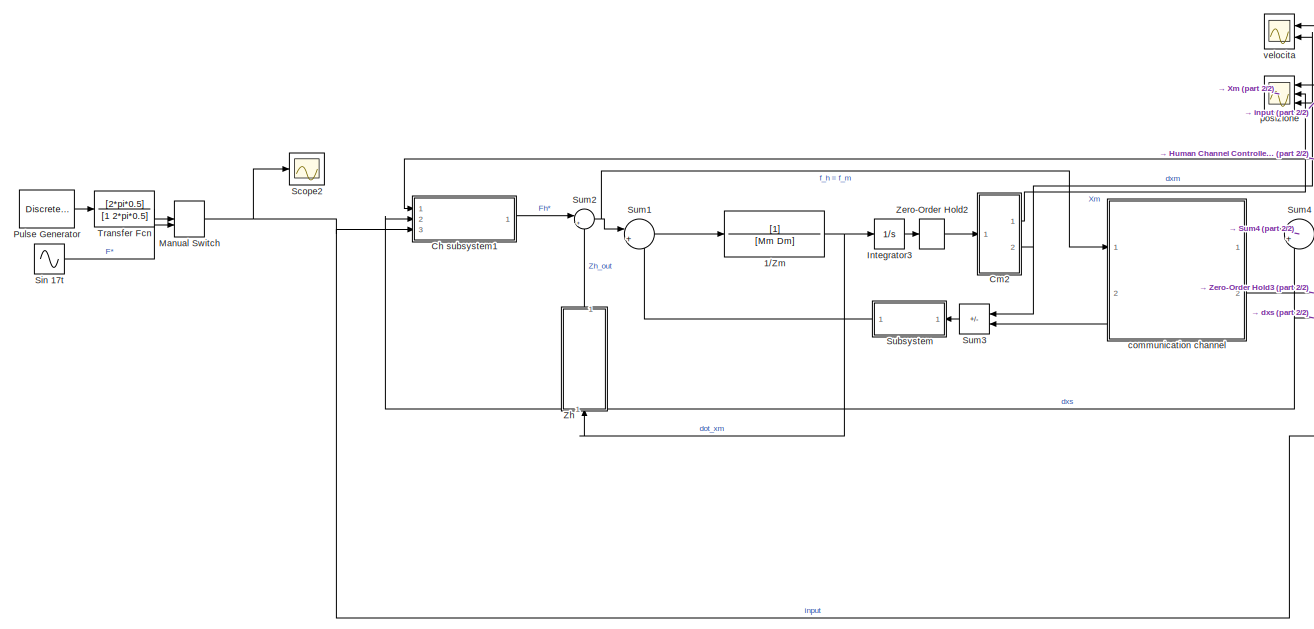
[diagram: root canvas - part 1/2, left side, full height]
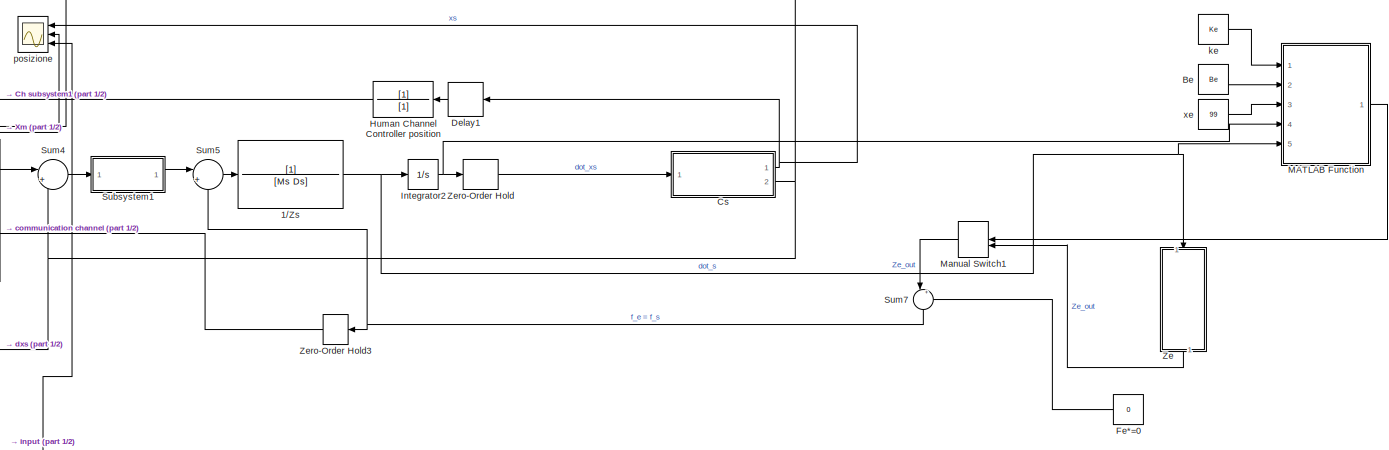
[diagram: root canvas - part 2/2, middle right region]
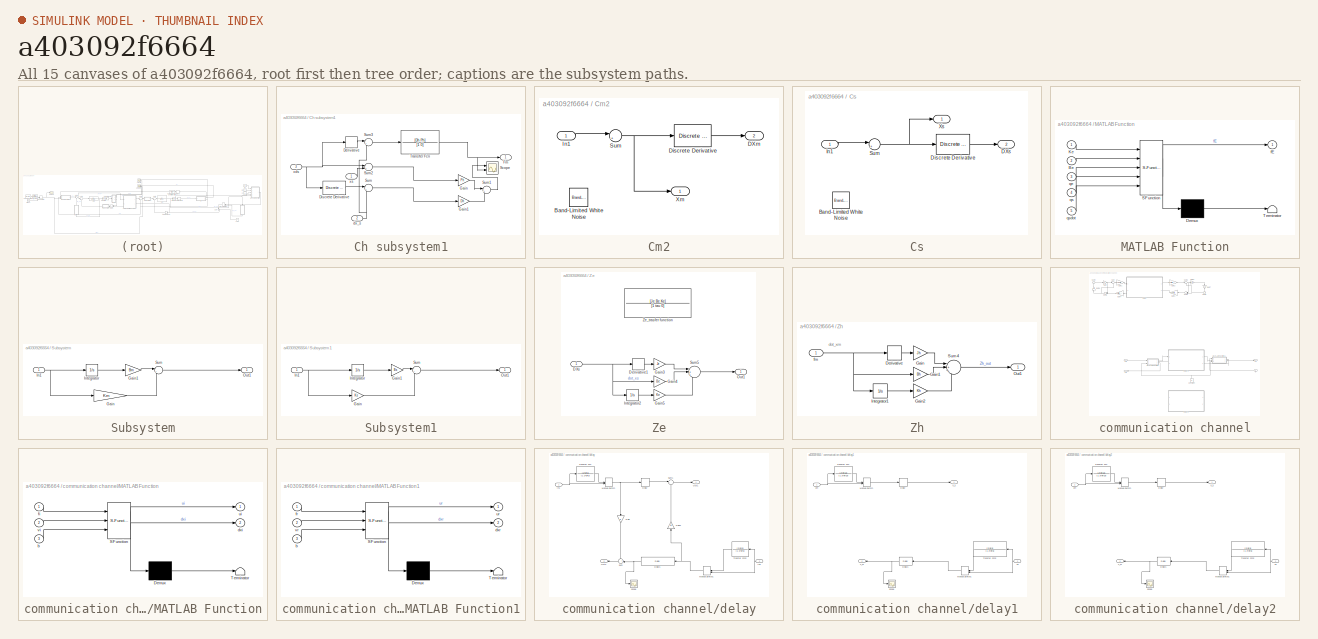
[diagram: thumbnail index - all 15 canvases of the model, root first then tree order]
MODEL slx_a403092f6664
KIND model
CONFIG AbsTol = auto
CONFIG EnableMultiTasking = off
CONFIG FixedStep = 0.001
CONFIG MaxStep = auto
CONFIG MinStep = auto
CONFIG RelTol = 1e-3
CONFIG SampleTimeConstraint = Unconstrained
CONFIG SolverName = FixedStepAuto
CONFIG StartTime = 0.0
CONFIG StopTime = 10
BLOCK [TransferFcn] 1//Zm
  Denominator = [Mm Dm]
  NameLocation = top
BLOCK [TransferFcn] 1//Zs
  Denominator = [Ms Ds]
  NameLocation = top
BLOCK [Constant] Be
  NameLocation = top
  Value = Be
BLOCK [SubSystem] Ch subsystem1
  Ports = [3, 1]
  RequestExecContextInheritance = off
BLOCK [Derivative] Ch subsystem1/Derivative
BLOCK [Reference] Ch subsystem1/Discrete Derivative  REF=simulink/Discrete/Discrete Derivative
  Ports = [1, 1]
  SourceBlock = simulink/Discrete/Discrete Derivative
  SourceProductBaseCode = SL
  SourceType = Discrete Derivative
BLOCK [Outport] Ch subsystem1/Fm
BLOCK [Gain] Ch subsystem1/Gain
  Gain = Ph
BLOCK [Gain] Ch subsystem1/Gain1
  Gain = Dh
BLOCK [Scope] Ch subsystem1/Scope
  Floating = off
  NumInputPorts = 2
  Ports = [2]
  ScopeSpecificationString = Simulink.scopes.TimeScopeBlockCfg('CurrentConfiguration', extmgr.ConfigurationSet(extmgr.Configuration('Core','General UI',true),extmgr.Configuration('Core','Source UI',true),extmgr.Configuration('Sources','WiredSimulink',true,'DataLoggingVariableName','ScopeData1'),extmgr.Configuration('Visuals','Time Domain',true,'SerializedDisplays',{struct('MinYLimReal','-2.35543','MaxYLimReal','2.29638','YLab...<+1378ch>
BLOCK [Sum] Ch subsystem1/Sum
  Inputs = |+-
  Ports = [2, 1]
BLOCK [Sum] Ch subsystem1/Sum1
  Inputs = |++
  Ports = [2, 1]
BLOCK [Sum] Ch subsystem1/Sum2
  Inputs = |+-
  Ports = [2, 1]
BLOCK [Sum] Ch subsystem1/Sum3
  Inputs = |+-
  Ports = [2, 1]
BLOCK [TransferFcn] Ch subsystem1/Transfer Fcn
  Denominator = [1 0]
  Numerator = [Dh Ph]
BLOCK [Inport] Ch subsystem1/dx_s
  Port = 2
BLOCK [Inport] Ch subsystem1/xds
  Port = 3
BLOCK [Inport] Ch subsystem1/xs
BLOCK [SubSystem] Cm2
  Ports = [1, 2]
  RequestExecContextInheritance = off
BLOCK [Reference] Cm2/Band-Limited White Noise  REF=simulink/Sources/Band-Limited
White Noise
  Ports = [0, 1]
  SourceBlock = simulink/Sources/Band-Limited\nWhite Noise
  SourceProductBaseCode = SL
  SourceType = Band-Limited White Noise.
BLOCK [Outport] Cm2/DXm
  Port = 2
BLOCK [Reference] Cm2/Discrete Derivative  REF=simulink/Discrete/Discrete Derivative
  Ports = [1, 1]
  SourceBlock = simulink/Discrete/Discrete Derivative
  SourceProductBaseCode = SL
  SourceType = Discrete Derivative
BLOCK [Inport] Cm2/In1
BLOCK [Sum] Cm2/Sum
  Inputs = |++
  Ports = [2, 1]
BLOCK [Outport] Cm2/Xm
BLOCK [SubSystem] Cs
  Ports = [1, 2]
  RequestExecContextInheritance = off
BLOCK [Reference] Cs/Band-Limited White Noise  REF=simulink/Sources/Band-Limited
White Noise
  Ports = [0, 1]
  SourceBlock = simulink/Sources/Band-Limited\nWhite Noise
  SourceProductBaseCode = SL
  SourceType = Band-Limited White Noise.
BLOCK [Outport] Cs/DXs
  Port = 2
BLOCK [Reference] Cs/Discrete Derivative  REF=simulink/Discrete/Discrete Derivative
  Ports = [1, 1]
  SourceBlock = simulink/Discrete/Discrete Derivative
  SourceProductBaseCode = SL
  SourceType = Discrete Derivative
BLOCK [Inport] Cs/In1
BLOCK [Sum] Cs/Sum
  Inputs = |++
  Ports = [2, 1]
BLOCK [Outport] Cs/Xs
BLOCK [Delay] Delay1
  DelayLength = 1
  InputPortMap = u0
  NameLocation = top
  Ports = [1, 1]
  SampleTime = Ts
BLOCK [Constant] Fe*=0
  Value = 0
BLOCK [TransferFcn] Human Channel Controller position
  Denominator = [1]
  NameLocation = top
BLOCK [Integrator] Integrator2
  Ports = [1, 1]
BLOCK [Integrator] Integrator3
  Ports = [1, 1]
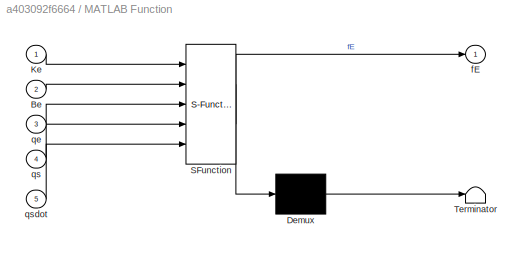
BLOCK [SubSystem] MATLAB Function
  ErrorFcn = Stateflow.Translate.translate
  PermitHierarchicalResolution = ExplicitOnly
  Ports = [5, 1]
  RequestExecContextInheritance = off
  SFBlockType = MATLAB Function
  TreatAsAtomicUnit = on
BLOCK [Demux] MATLAB Function/ Demux 
  Outputs = 1
  Ports = [1, 1]
BLOCK [S-Function] MATLAB Function/ SFunction 
  EnableBusSupport = on
  FunctionName = sf_sfun
  PortCounts = [5 2]
  Ports = [5, 2]
  SFcnIsStateOwnerBlock = off
  SFunctionDeploymentMode = off
  Tag = Stateflow S-Function 2
BLOCK [Terminator] MATLAB Function/ Terminator 
BLOCK [Inport] MATLAB Function/Be
  Port = 2
BLOCK [Inport] MATLAB Function/Ke
BLOCK [Outport] MATLAB Function/fE
BLOCK [Inport] MATLAB Function/qe
  Port = 3
BLOCK [Inport] MATLAB Function/qs
  Port = 4
BLOCK [Inport] MATLAB Function/qsdot
  Port = 5
BLOCK [ManualSwitch] Manual Switch
BLOCK [ManualSwitch] Manual Switch1
  CurrentSetting = 0
  NameLocation = top
BLOCK [DiscretePulseGenerator] Pulse Generator
  Period = 10
  PhaseDelay = 1
  Ports = [0, 1]
  PulseType = Time based
  PulseWidth = 50
BLOCK [Scope] Scope2
  Floating = off
  NumInputPorts = 1
  Ports = [1]
  ScopeSpecificationString = Simulink.scopes.TimeScopeBlockCfg('CurrentConfiguration', extmgr.ConfigurationSet(extmgr.Configuration('Core','General UI',true),extmgr.Configuration('Core','Source UI',true),extmgr.Configuration('Sources','WiredSimulink',true,'DataLoggingVariableName','ScopeData1'),extmgr.Configuration('Visuals','Time Domain',true,'SerializedDisplays',{struct('MinYLimReal','-0.625','MaxYLimReal','0.625','YLabelRe...<+1352ch>
BLOCK [Sin] Sin 17t
  Amplitude = 0.5
  Frequency = 2*pi*1
  Ports = [0, 1]
  SampleTime = 0
BLOCK [SubSystem] Subsystem
  NameLocation = top
  Ports = [1, 1]
  RequestExecContextInheritance = off
BLOCK [Gain] Subsystem/Gain
  Gain = Km
BLOCK [Gain] Subsystem/Gain1
  Gain = Bm
BLOCK [Inport] Subsystem/In1
BLOCK [Integrator] Subsystem/Integrator
  Ports = [1, 1]
BLOCK [Outport] Subsystem/Out1
BLOCK [Sum] Subsystem/Sum
  Inputs = |++
  Ports = [2, 1]
BLOCK [SubSystem] Subsystem1
  Ports = [1, 1]
  RequestExecContextInheritance = off
BLOCK [Gain] Subsystem1/Gain
  Gain = Ks
BLOCK [Gain] Subsystem1/Gain1
  Gain = Bs
BLOCK [Inport] Subsystem1/In1
BLOCK [Integrator] Subsystem1/Integrator
  Ports = [1, 1]
BLOCK [Outport] Subsystem1/Out1
BLOCK [Sum] Subsystem1/Sum
  Inputs = |++
  Ports = [2, 1]
BLOCK [Sum] Sum1
  Inputs = |+-
  Ports = [2, 1]
BLOCK [Sum] Sum2
  Inputs = |+-
  Ports = [2, 1]
BLOCK [Sum] Sum3
  IconShape = rectangular
  Inputs = |+-
  NameLocation = top
  Ports = [2, 1]
BLOCK [Sum] Sum4
  Inputs = |+-
  Ports = [2, 1]
BLOCK [Sum] Sum5
  Inputs = |+-
  Ports = [2, 1]
BLOCK [Sum] Sum7
  Inputs = |++
  NameLocation = right
  Ports = [2, 1]
BLOCK [TransferFcn] Transfer Fcn
  Denominator = [1 2*pi*0.5]
  Numerator = [2*pi*0.5]
BLOCK [SubSystem] Ze
  NameLocation = left
  Ports = [1, 1]
  RequestExecContextInheritance = off
BLOCK [Inport] Ze/DXs
BLOCK [Derivative] Ze/Derivative1
BLOCK [Gain] Ze/Gain3
  Gain = Je
BLOCK [Gain] Ze/Gain4
  Gain = Be
BLOCK [Gain] Ze/Gain5
  Gain = Ke
BLOCK [Integrator] Ze/Integrator2
  Ports = [1, 1]
BLOCK [Outport] Ze/Out1
BLOCK [Sum] Ze/Sum5
  Inputs = |+++
  Ports = [3, 1]
BLOCK [TransferFcn] Ze/Ze_trasfer function
  Commented = on
  Denominator = [1 tau 0]
  NameLocation = right
  Numerator = [Je Be Ke]
BLOCK [ZeroOrderHold] Zero-Order Hold
  SampleTime = -1
BLOCK [ZeroOrderHold] Zero-Order Hold2
  SampleTime = -1
BLOCK [ZeroOrderHold] Zero-Order Hold3
  NameLocation = top
  SampleTime = Ts
BLOCK [SubSystem] Zh
  NameLocation = right
  Ports = [1, 1]
  RequestExecContextInheritance = off
BLOCK [Derivative] Zh/Derivative
BLOCK [Gain] Zh/Gain
  Gain = Jh
BLOCK [Gain] Zh/Gain1
  Gain = Bh
BLOCK [Gain] Zh/Gain2
  Gain = Kh
BLOCK [Integrator] Zh/Integrator1
  Ports = [1, 1]
BLOCK [Outport] Zh/Out1
BLOCK [Sum] Zh/Sum4
  Inputs = |+++
  Ports = [3, 1]
BLOCK [Inport] Zh/fm
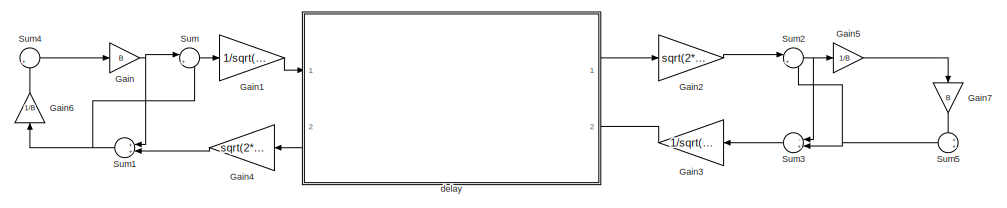
[diagram: communication channel - part 1/2, top center region]
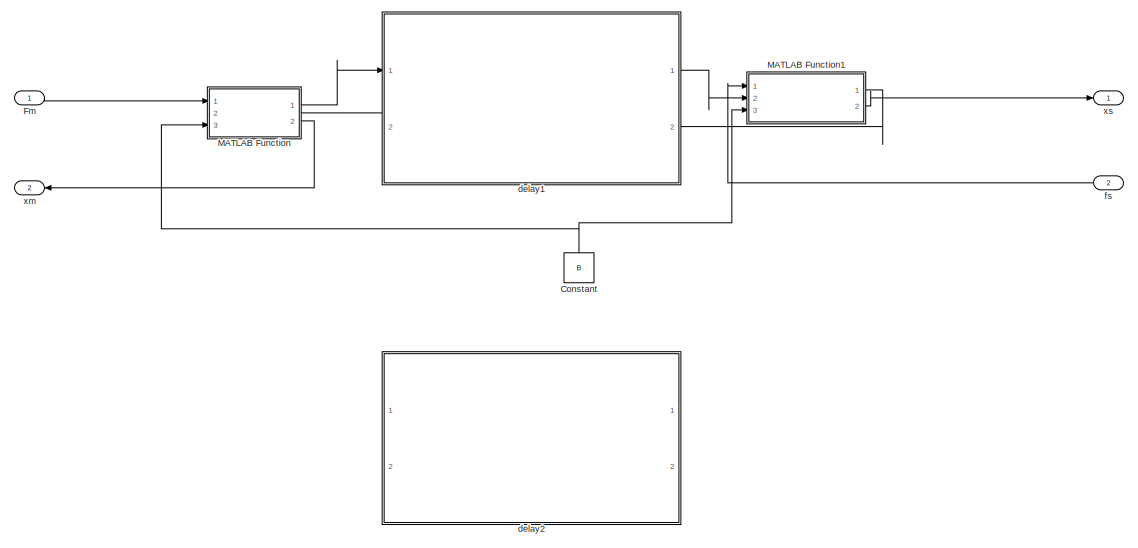
[diagram: communication channel - part 2/2, full width, bottom band]
BLOCK [SubSystem] communication channel
  PortSchema = {"entries":[{"content":{"sides":[{"content":{"connectorIds":["In1","Out2"]},"type":"ConnectorPlacement.EquallySpacedRectSide","uuid":"e201856c-da4b-4980-a88b-c6c86de05881"},{"content":{"connectorIds":["Out1","In2"],"side":"RIGHT"},"type":"ConnectorPlacement.EquallySpacedRectSide","uuid":"94e31da8-7242-4dd7-9573-e1ea0d94f21a"},{"content":{"connectorIds":[],"side":"TOP"},"type":"ConnectorPlacement.E...<+253ch>  <repeated x4 — deduplicated; at blocks: communication channel, delay, delay1, delay2>
  Ports = [2, 2]
  RequestExecContextInheritance = off
BLOCK [Constant] communication channel/Constant
  NameLocation = right
  Value = B
BLOCK [Inport] communication channel/Fm
BLOCK [Gain] communication channel/Gain
  Gain = B
BLOCK [Gain] communication channel/Gain1
  Gain = 1/sqrt(2*B)
BLOCK [Gain] communication channel/Gain2
  Gain = sqrt(2*B)
BLOCK [Gain] communication channel/Gain3
  Gain = 1/sqrt(2*B)
  NameLocation = top
BLOCK [Gain] communication channel/Gain4
  Gain = sqrt(2*B)
  NameLocation = top
BLOCK [Gain] communication channel/Gain5
  Gain = 1/B
BLOCK [Gain] communication channel/Gain6
  Gain = 1/B
  NameLocation = right
BLOCK [Gain] communication channel/Gain7
  Gain = B
  NameLocation = left
BLOCK [SubSystem] communication channel/MATLAB Function
  ErrorFcn = Stateflow.Translate.translate
  PermitHierarchicalResolution = ExplicitOnly
  Ports = [3, 2]
  RequestExecContextInheritance = off
  SFBlockType = MATLAB Function
  TreatAsAtomicUnit = on
BLOCK [Demux] communication channel/MATLAB Function/ Demux 
  Outputs = 1
  Ports = [1, 1]
BLOCK [S-Function] communication channel/MATLAB Function/ SFunction 
  EnableBusSupport = on
  FunctionName = sf_sfun
  PortCounts = [3 3]
  Ports = [3, 3]
  SFcnIsStateOwnerBlock = off
  SFunctionDeploymentMode = off
  Tag = Stateflow S-Function 1
BLOCK [Terminator] communication channel/MATLAB Function/ Terminator 
BLOCK [Inport] communication channel/MATLAB Function/b
  Port = 3
BLOCK [Outport] communication channel/MATLAB Function/dxi
  Port = 2
BLOCK [Inport] communication channel/MATLAB Function/fi
BLOCK [Outport] communication channel/MATLAB Function/ui
BLOCK [Inport] communication channel/MATLAB Function/vi
  Port = 2
BLOCK [SubSystem] communication channel/MATLAB Function1
  ErrorFcn = Stateflow.Translate.translate
  PermitHierarchicalResolution = ExplicitOnly
  Ports = [3, 2]
  RequestExecContextInheritance = off
  SFBlockType = MATLAB Function
  TreatAsAtomicUnit = on
BLOCK [Demux] communication channel/MATLAB Function1/ Demux 
  Outputs = 1
  Ports = [1, 1]
BLOCK [S-Function] communication channel/MATLAB Function1/ SFunction 
  EnableBusSupport = on
  FunctionName = sf_sfun
  PortCounts = [3 3]
  Ports = [3, 3]
  SFcnIsStateOwnerBlock = off
  SFunctionDeploymentMode = off
  Tag = Stateflow S-Function 3
BLOCK [Terminator] communication channel/MATLAB Function1/ Terminator 
BLOCK [Inport] communication channel/MATLAB Function1/b
  Port = 3
BLOCK [Outport] communication channel/MATLAB Function1/dxr
  Port = 2
BLOCK [Inport] communication channel/MATLAB Function1/fr
BLOCK [Outport] communication channel/MATLAB Function1/ur
BLOCK [Inport] communication channel/MATLAB Function1/vr
  Port = 2
BLOCK [Sum] communication channel/Sum
  Inputs = |++
  Ports = [2, 1]
BLOCK [Sum] communication channel/Sum1
  Inputs = ++|
  NameLocation = top
  Ports = [2, 1]
BLOCK [Sum] communication channel/Sum2
  Inputs = |+-
  Ports = [2, 1]
BLOCK [Sum] communication channel/Sum3
  Inputs = -+|
  NameLocation = top
  Ports = [2, 1]
BLOCK [Sum] communication channel/Sum4
  Inputs = |+-
  Ports = [2, 1]
BLOCK [Sum] communication channel/Sum5
  Inputs = ++|
  NameLocation = top
  Ports = [2, 1]
BLOCK [SubSystem] communication channel/delay
  Ports = [2, 2]
  RequestExecContextInheritance = off
BLOCK [Delay] communication channel/delay/Delay
  DelayLength = 1
  InitialCondition = 0
  InputPortMap = u0
  Ports = [1, 1]
BLOCK [Delay] communication channel/delay/Delay1
  DelayLength = 1
  InitialCondition = 0
  InputPortMap = u0
  NameLocation = top
  Ports = [1, 1]
BLOCK [Gain] communication channel/delay/Gain
  Gain = B
  NameLocation = left
BLOCK [Gain] communication channel/delay/Gain1
  Gain = 1/B
  NameLocation = right
BLOCK [Inport] communication channel/delay/In1
BLOCK [Inport] communication channel/delay/In2
  NameLocation = top
  Port = 2
BLOCK [ManualSwitch] communication channel/delay/Manual Switch
BLOCK [ManualSwitch] communication channel/delay/Manual Switch1
  NameLocation = top
BLOCK [Outport] communication channel/delay/Out1
BLOCK [Outport] communication channel/delay/Out2
  NameLocation = top
  Port = 2
BLOCK [Scope] communication channel/delay/Scope
  Floating = off
  NumInputPorts = 1
  Ports = [1]
  ScopeSpecificationString = Simulink.scopes.TimeScopeBlockCfg('CurrentConfiguration', extmgr.ConfigurationSet(extmgr.Configuration('Core','General UI',true),extmgr.Configuration('Core','Source UI',true),extmgr.Configuration('Sources','WiredSimulink',true,'DataLoggingVariableName','ScopeData5'),extmgr.Configuration('Visuals','Time Domain',true,'SerializedDisplays',{struct('MinYLimReal','-16745765454525057285674331981559796117...<+2377ch>
BLOCK [Sum] communication channel/delay/Sum
  Inputs = ++|
  NameLocation = top
  Ports = [2, 1]
BLOCK [Sum] communication channel/delay/Sum1
  Inputs = |+-
  Ports = [2, 1]
BLOCK [TransferFcn] communication channel/delay/Transfer Fcn
  Denominator = [1 2*pi*3]
  Numerator = [2*pi*3]
BLOCK [TransferFcn] communication channel/delay/Transfer Fcn2
  Denominator = [1 2*pi*3]
  NameLocation = top
  Numerator = [2*pi*3]
BLOCK [SubSystem] communication channel/delay1
  Ports = [2, 2]
  RequestExecContextInheritance = off
BLOCK [Delay] communication channel/delay1/Delay
  DelayLength = 1
  InitialCondition = 0
  InputPortMap = u0
  Ports = [1, 1]
  SampleTime = Ts
BLOCK [Delay] communication channel/delay1/Delay1
  DelayLength = 1
  InitialCondition = 0
  InputPortMap = u0
  NameLocation = top
  Ports = [1, 1]
  SampleTime = Ts
BLOCK [ManualSwitch] communication channel/delay1/Manual Switch
BLOCK [ManualSwitch] communication channel/delay1/Manual Switch1
  CurrentSetting = 0
  NameLocation = top
BLOCK [Scope] communication channel/delay1/Scope
  Floating = off
  NumInputPorts = 1
  Ports = [1]
  ScopeSpecificationString = Simulink.scopes.TimeScopeBlockCfg('CurrentConfiguration', extmgr.ConfigurationSet(extmgr.Configuration('Core','General UI',true),extmgr.Configuration('Core','Source UI',true),extmgr.Configuration('Sources','WiredSimulink',true,'DataLoggingVariableName','ScopeData5'),extmgr.Configuration('Visuals','Time Domain',true,'SerializedDisplays',{struct('MinYLimReal','-1.00000','MaxYLimReal','1.00000','YLab...<+1365ch>
BLOCK [TransferFcn] communication channel/delay1/Transfer Fcn
  Denominator = [1 2*pi*10]
  Numerator = [2*pi*10]
BLOCK [TransferFcn] communication channel/delay1/Transfer Fcn2
  Denominator = [1 2*pi*3]
  NameLocation = top
  Numerator = [2*pi*3]
BLOCK [Inport] communication channel/delay1/um
BLOCK [Inport] communication channel/delay1/us
  NameLocation = top
  Port = 2
BLOCK [Outport] communication channel/delay1/v_m
  NameLocation = top
  Port = 2
BLOCK [Outport] communication channel/delay1/v_s
BLOCK [SubSystem] communication channel/delay2
  Commented = on
  Ports = [2, 2]
  RequestExecContextInheritance = off
BLOCK [Delay] communication channel/delay2/Delay
  DelayLength = 900
  InitialCondition = 0
  InputPortMap = u0
  Ports = [1, 1]
  SampleTime = Ts
BLOCK [Delay] communication channel/delay2/Delay1
  DelayLength = 1
  InitialCondition = 0
  InputPortMap = u0
  NameLocation = top
  Ports = [1, 1]
  SampleTime = Ts
BLOCK [ManualSwitch] communication channel/delay2/Manual Switch
BLOCK [ManualSwitch] communication channel/delay2/Manual Switch1
  CurrentSetting = 0
  NameLocation = top
BLOCK [Scope] communication channel/delay2/Scope
  Floating = off
  NumInputPorts = 1
  Ports = [1]
  ScopeSpecificationString = Simulink.scopes.TimeScopeBlockCfg('CurrentConfiguration', extmgr.ConfigurationSet(extmgr.Configuration('Core','General UI',true),extmgr.Configuration('Core','Source UI',true),extmgr.Configuration('Sources','WiredSimulink',true,'DataLoggingVariableName','ScopeData5'),extmgr.Configuration('Visuals','Time Domain',true,'SerializedDisplays',{struct('MinYLimReal','-1.00000','MaxYLimReal','1.00000','YLab...<+1365ch>
BLOCK [TransferFcn] communication channel/delay2/Transfer Fcn
  Denominator = [1 2*pi*10]
  Numerator = [2*pi*10]
BLOCK [TransferFcn] communication channel/delay2/Transfer Fcn2
  Denominator = [1 2*pi*3]
  NameLocation = top
  Numerator = [2*pi*3]
BLOCK [Inport] communication channel/delay2/um
BLOCK [Inport] communication channel/delay2/us
  NameLocation = top
  Port = 2
BLOCK [Outport] communication channel/delay2/v_m
  NameLocation = top
  Port = 2
BLOCK [Outport] communication channel/delay2/v_s
BLOCK [Inport] communication channel/fs
  NameLocation = top
  Port = 2
BLOCK [Outport] communication channel/xm
  NameLocation = top
  Port = 2
BLOCK [Outport] communication channel/xs
BLOCK [Constant] ke
  NameLocation = top
  Value = Ke
BLOCK [Scope] posizione
  Floating = off
  NameLocation = top
  NumInputPorts = 3
  Ports = [3]
  ScopeSpecificationString = Simulink.scopes.TimeScopeBlockCfg('CurrentConfiguration', extmgr.ConfigurationSet(extmgr.Configuration('Core','General UI',true,'FigureColor',[0.941176470588235 0.941176470588235 0.941176470588235]),extmgr.Configuration('Core','Source UI',true),extmgr.Configuration('Sources','WiredSimulink',true,'DataLoggingVariableName','ScopeData3'),extmgr.Configuration('Visuals','Time Domain',true,'SerializedDi...<+1935ch>
BLOCK [Scope] velocita
  Floating = off
  NameLocation = top
  NumInputPorts = 2
  Ports = [2]
  ScopeSpecificationString = Simulink.scopes.TimeScopeBlockCfg('CurrentConfiguration', extmgr.ConfigurationSet(extmgr.Configuration('Core','General UI',true,'FigureColor',[0.941176470588235 0.941176470588235 0.941176470588235]),extmgr.Configuration('Core','Source UI',true),extmgr.Configuration('Sources','WiredSimulink',true,'DataLoggingVariableName','ScopeData5'),extmgr.Configuration('Visuals','Time Domain',true,'SerializedDi...<+1954ch>
BLOCK [Constant] xe
  NameLocation = top
  Value = 99
ANNOTATION Zh: dot_xm
NET 1//Zm:1 -> Integrator3:1, Zh:1
NET 1//Zs:1 -> Integrator2:1, MATLAB Function:5, Ze:1
LINE Be:1 -> MATLAB Function:2
LINE Ch subsystem1/Derivative:1 -> Ch subsystem1/Sum3:1
LINE Ch subsystem1/Discrete Derivative:1 -> Ch subsystem1/Sum:1
LINE Ch subsystem1/Gain1:1 -> Ch subsystem1/Sum1:2
LINE Ch subsystem1/Gain:1 -> Ch subsystem1/Sum1:1
LINE Ch subsystem1/Sum1:1 -> Ch subsystem1/Scope:1
LINE Ch subsystem1/Sum2:1 -> Ch subsystem1/Gain:1
LINE Ch subsystem1/Sum3:1 -> Ch subsystem1/Transfer Fcn:1
LINE Ch subsystem1/Sum:1 -> Ch subsystem1/Gain1:1
NET Ch subsystem1/Transfer Fcn:1 -> Ch subsystem1/Fm:1, Ch subsystem1/Scope:2
NET Ch subsystem1/dx_s:1 -> Ch subsystem1/Sum3:2, Ch subsystem1/Sum:2
NET Ch subsystem1/xds:1 -> Ch subsystem1/Derivative:1, Ch subsystem1/Discrete Derivative:1, Ch subsystem1/Sum2:1
LINE Ch subsystem1/xs:1 -> Ch subsystem1/Sum2:2
LINE Ch subsystem1:1 -> Sum2:1
LINE Cm2/Discrete Derivative:1 -> Cm2/DXm:1
LINE Cm2/In1:1 -> Cm2/Sum:1
NET Cm2/Sum:1 -> Cm2/Discrete Derivative:1, Cm2/Xm:1
LINE Cm2:1 -> posizione:2
NET Cm2:2 -> Sum3:1, velocita:2
LINE Cs/Discrete Derivative:1 -> Cs/DXs:1
LINE Cs/In1:1 -> Cs/Sum:1
NET Cs/Sum:1 -> Cs/Discrete Derivative:1, Cs/Xs:1
NET Cs:1 -> Delay1:1, posizione:1
NET Cs:2 -> Ch subsystem1:2, Sum4:2, velocita:1
LINE Delay1:1 -> Human Channel Controller position:1
LINE Fe*=0:1 -> Sum7:2
LINE Human Channel Controller position:1 -> Ch subsystem1:1
NET Integrator2:1 -> MATLAB Function:4, Zero-Order Hold:1
LINE Integrator3:1 -> Zero-Order Hold2:1
LINE MATLAB Function:1 -> Manual Switch1:1
LINE Manual Switch1:1 -> Sum7:1
NET Manual Switch:1 -> Ch subsystem1:3, Scope2:1, posizione:3
LINE Pulse Generator:1 -> Transfer Fcn:1
LINE Sin 17t:1 -> Manual Switch:2
LINE Subsystem/Gain1:1 -> Subsystem/Sum:1
LINE Subsystem/Gain:1 -> Subsystem/Sum:2
NET Subsystem/In1:1 -> Subsystem/Gain:1, Subsystem/Integrator:1
LINE Subsystem/Integrator:1 -> Subsystem/Gain1:1
LINE Subsystem/Sum:1 -> Subsystem/Out1:1
LINE Subsystem1/Gain1:1 -> Subsystem1/Sum:1
LINE Subsystem1/Gain:1 -> Subsystem1/Sum:2
NET Subsystem1/In1:1 -> Subsystem1/Gain:1, Subsystem1/Integrator:1
LINE Subsystem1/Integrator:1 -> Subsystem1/Gain1:1
LINE Subsystem1/Sum:1 -> Subsystem1/Out1:1
LINE Subsystem1:1 -> Sum5:1
LINE Subsystem:1 -> Sum1:2
LINE Sum1:1 -> 1//Zm:1
NET Sum2:1 -> Sum1:1, communication channel:1
LINE Sum3:1 -> Subsystem:1
LINE Sum4:1 -> Subsystem1:1
LINE Sum5:1 -> 1//Zs:1
NET Sum7:1 -> Sum5:2, Zero-Order Hold3:1
LINE Transfer Fcn:1 -> Manual Switch:1
NET Ze/DXs:1 -> Ze/Derivative1:1, Ze/Gain4:1, Ze/Integrator2:1
LINE Ze/Derivative1:1 -> Ze/Gain3:1
LINE Ze/Gain3:1 -> Ze/Sum5:1
LINE Ze/Gain4:1 -> Ze/Sum5:2
LINE Ze/Gain5:1 -> Ze/Sum5:3
LINE Ze/Integrator2:1 -> Ze/Gain5:1
LINE Ze/Sum5:1 -> Ze/Out1:1
LINE Ze:1 -> Manual Switch1:2
LINE Zero-Order Hold2:1 -> Cm2:1
LINE Zero-Order Hold3:1 -> communication channel:2
LINE Zero-Order Hold:1 -> Cs:1
LINE Zh/Derivative:1 -> Zh/Gain:1
LINE Zh/Gain1:1 -> Zh/Sum4:2
LINE Zh/Gain2:1 -> Zh/Sum4:3
LINE Zh/Gain:1 -> Zh/Sum4:1
LINE Zh/Integrator1:1 -> Zh/Gain2:1
LINE Zh/Sum4:1 -> Zh/Out1:1
NET Zh/fm:1 -> Zh/Derivative:1, Zh/Gain1:1, Zh/Integrator1:1
LINE Zh:1 -> Sum2:2
NET communication channel/Constant:1 -> communication channel/MATLAB Function1:3, communication channel/MATLAB Function:3
LINE communication channel/Fm:1 -> communication channel/MATLAB Function:1
LINE communication channel/Gain1:1 -> communication channel/delay:1
LINE communication channel/Gain2:1 -> communication channel/Sum2:1
LINE communication channel/Gain3:1 -> communication channel/delay:2
LINE communication channel/Gain4:1 -> communication channel/Sum1:2
LINE communication channel/Gain5:1 -> communication channel/Gain7:1
LINE communication channel/Gain6:1 -> communication channel/Sum4:2
LINE communication channel/Gain7:1 -> communication channel/Sum5:1
NET communication channel/Gain:1 -> communication channel/Sum1:1, communication channel/Sum:1
LINE communication channel/MATLAB Function1:1 -> communication channel/delay1:2
LINE communication channel/MATLAB Function1:2 -> communication channel/xs:1
LINE communication channel/MATLAB Function:1 -> communication channel/delay1:1
LINE communication channel/MATLAB Function:2 -> communication channel/xm:1
NET communication channel/Sum1:1 -> communication channel/Gain6:1, communication channel/Sum:2
NET communication channel/Sum2:1 -> communication channel/Gain5:1, communication channel/Sum3:1
LINE communication channel/Sum3:1 -> communication channel/Gain3:1
LINE communication channel/Sum4:1 -> communication channel/Gain:1
NET communication channel/Sum5:1 -> communication channel/Sum2:2, communication channel/Sum3:2
LINE communication channel/Sum:1 -> communication channel/Gain1:1
NET communication channel/delay/Delay1:1 -> communication channel/delay/Scope:1, communication channel/delay/Sum:2
LINE communication channel/delay/Delay:1 -> communication channel/delay/Sum1:1
LINE communication channel/delay/Gain1:1 -> communication channel/delay/Sum1:2
LINE communication channel/delay/Gain:1 -> communication channel/delay/Sum:1
NET communication channel/delay/In1:1 -> communication channel/delay/Manual Switch:2, communication channel/delay/Transfer Fcn:1
NET communication channel/delay/In2:1 -> communication channel/delay/Manual Switch1:2, communication channel/delay/Transfer Fcn2:1
NET communication channel/delay/Manual Switch1:1 -> communication channel/delay/Delay1:1, communication channel/delay/Gain1:1
NET communication channel/delay/Manual Switch:1 -> communication channel/delay/Delay:1, communication channel/delay/Gain:1
LINE communication channel/delay/Sum1:1 -> communication channel/delay/Out1:1
LINE communication channel/delay/Sum:1 -> communication channel/delay/Out2:1
LINE communication channel/delay/Transfer Fcn2:1 -> communication channel/delay/Manual Switch1:1
LINE communication channel/delay/Transfer Fcn:1 -> communication channel/delay/Manual Switch:1
NET communication channel/delay1/Delay1:1 -> communication channel/delay1/Scope:1, communication channel/delay1/v_m:1
LINE communication channel/delay1/Delay:1 -> communication channel/delay1/v_s:1
LINE communication channel/delay1/Manual Switch1:1 -> communication channel/delay1/Delay1:1
LINE communication channel/delay1/Manual Switch:1 -> communication channel/delay1/Delay:1
LINE communication channel/delay1/Transfer Fcn2:1 -> communication channel/delay1/Manual Switch1:1
LINE communication channel/delay1/Transfer Fcn:1 -> communication channel/delay1/Manual Switch:1
NET communication channel/delay1/um:1 -> communication channel/delay1/Manual Switch:2, communication channel/delay1/Transfer Fcn:1
NET communication channel/delay1/us:1 -> communication channel/delay1/Manual Switch1:2, communication channel/delay1/Transfer Fcn2:1
LINE communication channel/delay1:1 -> communication channel/MATLAB Function1:2
LINE communication channel/delay1:2 -> communication channel/MATLAB Function:2
NET communication channel/delay2/Delay1:1 -> communication channel/delay2/Scope:1, communication channel/delay2/v_m:1
LINE communication channel/delay2/Delay:1 -> communication channel/delay2/v_s:1
LINE communication channel/delay2/Manual Switch1:1 -> communication channel/delay2/Delay1:1
LINE communication channel/delay2/Manual Switch:1 -> communication channel/delay2/Delay:1
LINE communication channel/delay2/Transfer Fcn2:1 -> communication channel/delay2/Manual Switch1:1
LINE communication channel/delay2/Transfer Fcn:1 -> communication channel/delay2/Manual Switch:1
NET communication channel/delay2/um:1 -> communication channel/delay2/Manual Switch:2, communication channel/delay2/Transfer Fcn:1
NET communication channel/delay2/us:1 -> communication channel/delay2/Manual Switch1:2, communication channel/delay2/Transfer Fcn2:1
LINE communication channel/delay:1 -> communication channel/Gain2:1
LINE communication channel/delay:2 -> communication channel/Gain4:1
LINE communication channel/fs:1 -> communication channel/MATLAB Function1:1
LINE communication channel:1 -> Sum4:1
LINE communication channel:2 -> Sum3:2
LINE ke:1 -> MATLAB Function:1
LINE xe:1 -> MATLAB Function:3
note: NET lines group one-source signal fan-out (src -> all destinations, sorted); 1:1 wires keep LINE
CHART communication channel/MATLAB Function states=1 transitions=1
  STATE_LABEL 'eML_blk_kernel()'
  STATE_LABEL 'SCRIPT:\nfunction [ui,dxi] = fcn(fi,vi,b)\n\nui = sqrt(2/b)*fi - vi;\ndxi = 1/b*(fi - sqrt(2*b)*vi);\nend'
CHART MATLAB Function states=1 transitions=1
  STATE_LABEL 'eML_blk_kernel()'
  STATE_LABEL 'SCRIPT:\nfunction fE = environment(Ke, Be, qe, qs, qsdot)\n    if qs > qe\n        fE = Ke * (qs - qe) + Be * qsdot;\n    else\n        fE = 0;\n    end\nend\n'
CHART communication channel/MATLAB Function1 states=1 transitions=1
  STATE_LABEL 'eML_blk_kernel()'
  STATE_LABEL 'SCRIPT:\nfunction [ur,dxr] = fcn(fr,vr,b)\n\n\nur = sqrt(2/b) * fr - vr;\ndxr = -1/b*(fr - sqrt(2*b)*vr);\n'
CHART  states=0 transitions=0
CHART  states=0 transitions=0
CHART  states=0 transitions=0
